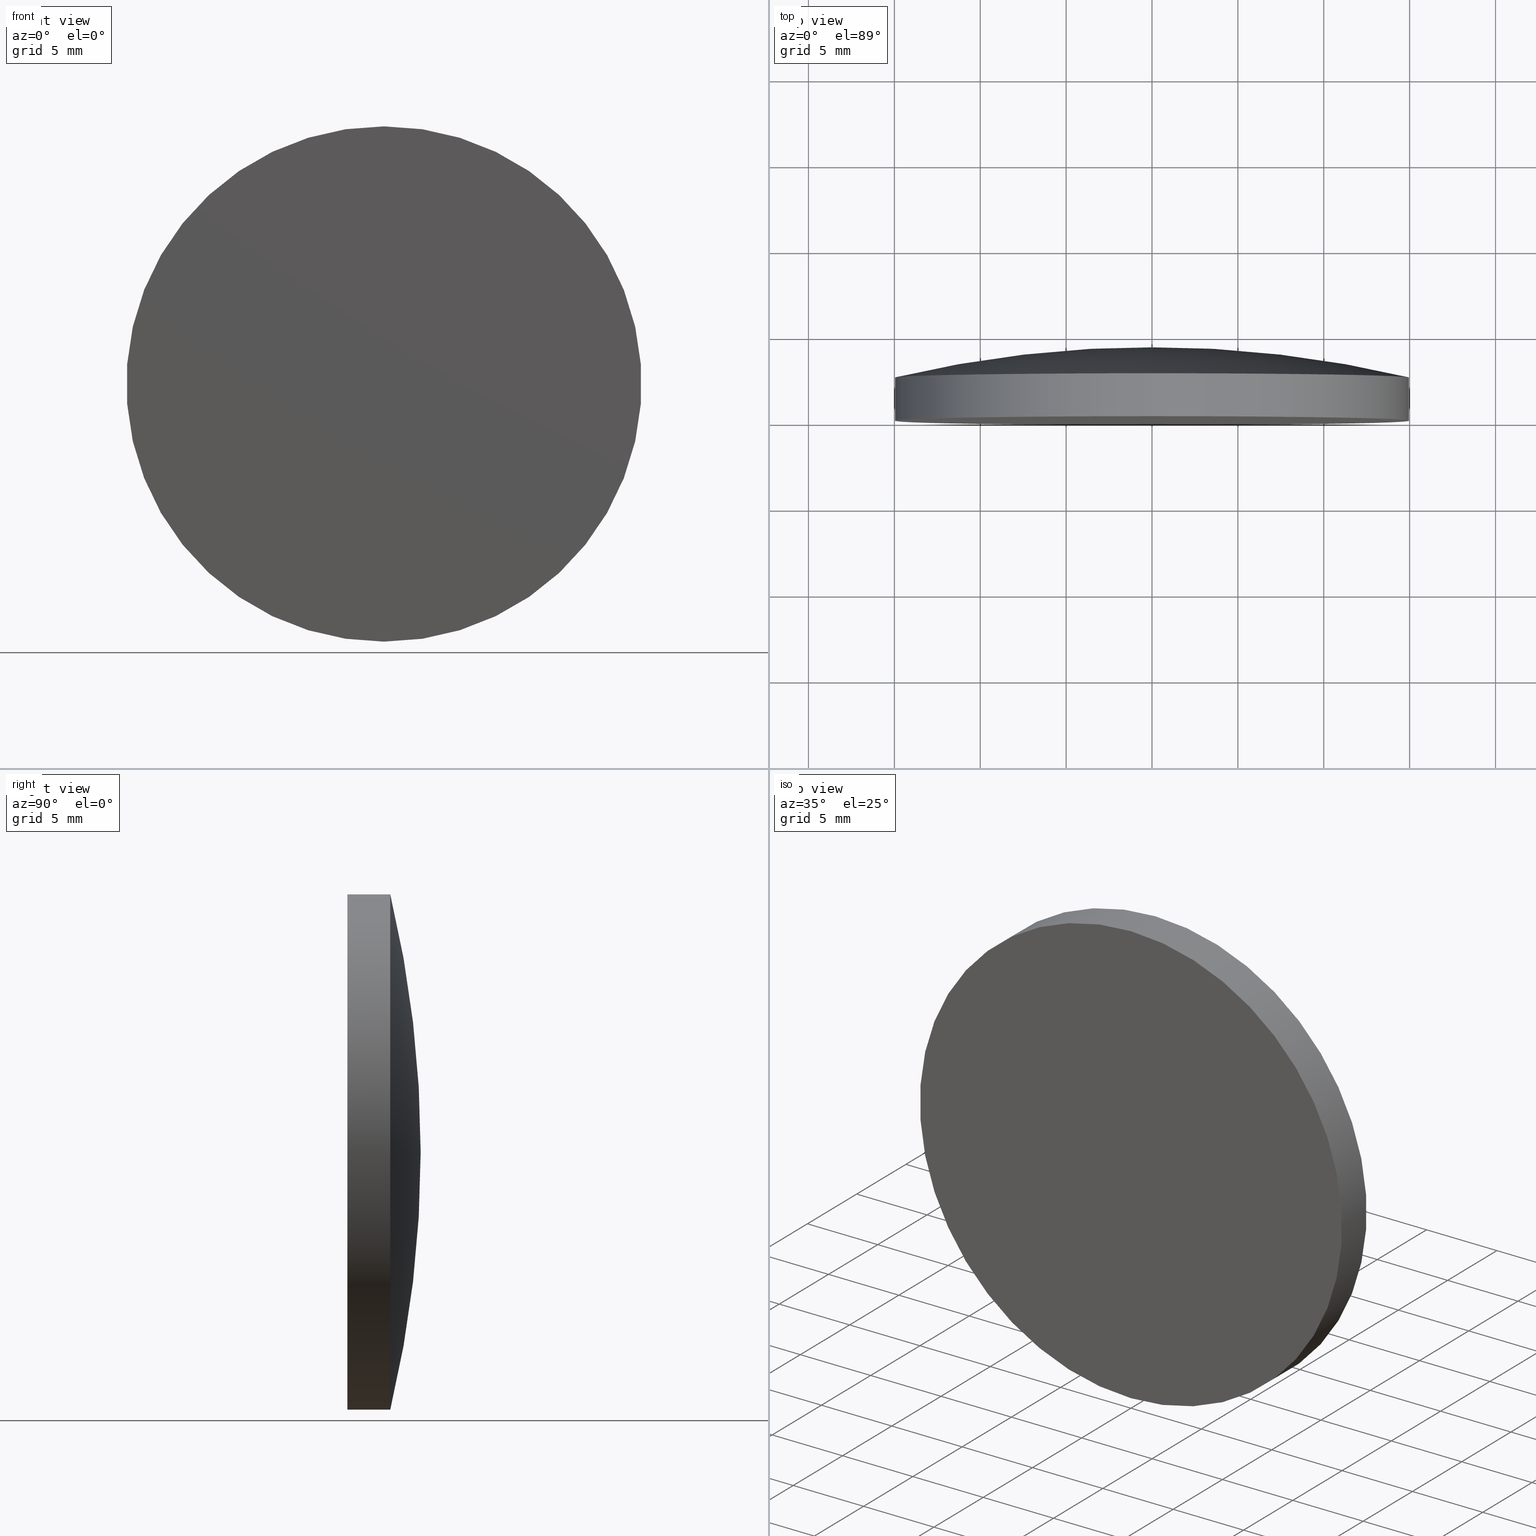
[diagram: canonical four-view strip — front | top / right | iso, engineering-drawing reading convention]
A machine part, canonical four-view strip (front | top / right | iso — engineering-drawing reading convention). The complete STEP part file that produces these views, byte-faithful:
ISO-10303-21;
HEADER;
FILE_DESCRIPTION (( 'STEP AP203' ),
    '1' );
FILE_NAME ('100599.STEP',
    '2024-05-10T02:01:58',
    ( '' ),
    ( '' ),
    'SwSTEP 2.0',
    'SolidWorks 2020',
    '' );
FILE_SCHEMA (( 'CONFIG_CONTROL_DESIGN' ));
ENDSEC;

DATA;
#1 = APPLICATION_CONTEXT ( 'configuration controlled 3d designs of mechanical parts and assemblies' ) ;
#2 = PERSON_AND_ORGANIZATION_ROLE ( 'creator' ) ;
#3 =( LENGTH_UNIT ( ) NAMED_UNIT ( * ) SI_UNIT ( .MILLI., .METRE. ) );
#4 = DATE_AND_TIME ( #19, #71 ) ;
#5 = PRODUCT_DEFINITION ( 'δ֪', '', #33, #49 ) ;
#6 =( GEOMETRIC_REPRESENTATION_CONTEXT ( 3 ) GLOBAL_UNCERTAINTY_ASSIGNED_CONTEXT ( ( #27 ) ) GLOBAL_UNIT_ASSIGNED_CONTEXT ( ( #3, #127, #86 ) ) REPRESENTATION_CONTEXT ( 'NONE', 'WORKASPACE' ) );
#7 = VERTEX_POINT ( 'NONE', #175 ) ;
#8 = CALENDAR_DATE ( 2024, 10, 5 ) ;
#9 = DIRECTION ( 'NONE',  ( 0.000000000000000000, 0.000000000000000000, 1.000000000000000000 ) ) ;
#10 = CARTESIAN_POINT ( 'NONE',  ( 1.836970198721029589E-15, -1.734723475976807094E-15, -15.00000000000000000 ) ) ;
#11 = EDGE_LOOP ( 'NONE', ( #182, #57, #24 ) ) ;
#12 = CARTESIAN_POINT ( 'NONE',  ( 0.000000000000000000, 4.269999999999999574, 0.000000000000000000 ) ) ;
#13 = ADVANCED_BREP_SHAPE_REPRESENTATION ( '100599', ( #186, #26 ), #6 ) ;
#14 = CIRCLE ( 'NONE', #200, 15.00000000000000000 ) ;
#15 = EDGE_CURVE ( 'NONE', #75, #39, #90, .T. ) ;
#16 = DATE_TIME_ROLE ( 'creation_date' ) ;
#17 = MECHANICAL_CONTEXT ( 'NONE', #89, 'mechanical' ) ;
#18 = CIRCLE ( 'NONE', #170, 15.00000000000000000 ) ;
#19 = CALENDAR_DATE ( 2024, 10, 5 ) ;
#20 = ORIENTED_EDGE ( 'NONE', *, *, #83, .F. ) ;
#21 = CARTESIAN_POINT ( 'NONE',  ( 0.000000000000000000, -60.27999879552782403, -0.01246985787228902659 ) ) ;
#22 = TOROIDAL_SURFACE ( 'NONE', #138, -0.01246985787228902659, 64.54999999999999716 ) ;
#23 = CARTESIAN_POINT ( 'NONE',  ( 0.000000000000000000, 2.499999999999998224, 0.000000000000000000 ) ) ;
#24 = ORIENTED_EDGE ( 'NONE', *, *, #112, .F. ) ;
#25 = FACE_OUTER_BOUND ( 'NONE', #147, .T. ) ;
#26 = AXIS2_PLACEMENT_3D ( 'NONE', #66, #174, #70 ) ;
#27 = UNCERTAINTY_MEASURE_WITH_UNIT (LENGTH_MEASURE( 1.000000000000000082E-05 ), #3, 'distance_accuracy_value', 'NONE');
#28 = CARTESIAN_POINT ( 'NONE',  ( 0.000000000000000000, -1.734723475976807094E-15, 15.00000000000000000 ) ) ;
#29 = APPROVAL ( #84, 'δָ��' ) ;
#30 = CC_DESIGN_APPROVAL ( #67, ( #5 ) ) ;
#31 = CIRCLE ( 'NONE', #53, 64.54999999999999716 ) ;
#32 = COORDINATED_UNIVERSAL_TIME_OFFSET ( 8, 0, .AHEAD. ) ;
#33 = PRODUCT_DEFINITION_FORMATION_WITH_SPECIFIED_SOURCE ( '�κ�', '', #128, .NOT_KNOWN. ) ;
#34 = DATE_AND_TIME ( #155, #144 ) ;
#35 = EDGE_CURVE ( 'NONE', #176, #39, #14, .T. ) ;
#36 = PERSON_AND_ORGANIZATION_ROLE ( 'classification_officer' ) ;
#37 = CC_DESIGN_PERSON_AND_ORGANIZATION_ASSIGNMENT ( #85, #2, ( #33 ) ) ;
#38 = EDGE_CURVE ( 'NONE', #39, #7, #105, .T. ) ;
#39 = VERTEX_POINT ( 'NONE', #193 ) ;
#40 = PERSON_AND_ORGANIZATION ( #46, #111 ) ;
#41 = DIRECTION ( 'NONE',  ( -0.000000000000000000, 1.000000000000000000, -0.000000000000000000 ) ) ;
#42 = APPROVAL_STATUS ( 'not_yet_approved' ) ;
#43 = DIRECTION ( 'NONE',  ( -0.000000000000000000, 1.000000000000000000, -0.000000000000000000 ) ) ;
#44 = AXIS2_PLACEMENT_3D ( 'NONE', #150, #80, #135 ) ;
#45 = APPROVAL_DATE_TIME ( #177, #100 ) ;
#46 = PERSON ( 'δָ��', 'δָ��', 'δָ��', ('δָ��'), ('δָ��'), ('δָ��') ) ;
#47 = DIRECTION ( 'NONE',  ( 1.000000000000000000, 0.000000000000000000, 1.224646799147353207E-16 ) ) ;
#48 = EDGE_CURVE ( 'NONE', #148, #75, #18, .T. ) ;
#49 = DESIGN_CONTEXT ( 'detailed design', #1, 'design' ) ;
#50 = DIRECTION ( 'NONE',  ( -0.000000000000000000, 1.000000000000000000, -0.000000000000000000 ) ) ;
#51 = PERSON_AND_ORGANIZATION ( #46, #111 ) ;
#52 = CC_DESIGN_APPROVAL ( #100, ( #166 ) ) ;
#53 = AXIS2_PLACEMENT_3D ( 'NONE', #21, #145, #9 ) ;
#54 = PERSON_AND_ORGANIZATION_ROLE ( 'design_supplier' ) ;
#55 = PERSON_AND_ORGANIZATION ( #46, #111 ) ;
#56 = DIRECTION ( 'NONE',  ( -0.000000000000000000, 1.000000000000000000, -0.000000000000000000 ) ) ;
#57 = ORIENTED_EDGE ( 'NONE', *, *, #38, .T. ) ;
#58 = DIRECTION ( 'NONE',  ( -0.000000000000000000, 1.000000000000000000, -0.000000000000000000 ) ) ;
#59 = CC_DESIGN_PERSON_AND_ORGANIZATION_ASSIGNMENT ( #173, #36, ( #166 ) ) ;
#60 = DATE_AND_TIME ( #8, #88 ) ;
#61 = CARTESIAN_POINT ( 'NONE',  ( -1.527117152912117945E-18, -60.27999879552782403, 0.01246985787228902659 ) ) ;
#62 = DIRECTION ( 'NONE',  ( 0.000000000000000000, 0.000000000000000000, 1.000000000000000000 ) ) ;
#63 = LINE ( 'NONE', #123, #180 ) ;
#64 = PLANE ( 'NONE',  #187 ) ;
#65 = PRODUCT_RELATED_PRODUCT_CATEGORY ( 'detail', '', ( #128 ) ) ;
#66 = CARTESIAN_POINT ( 'NONE',  ( 0.000000000000000000, 0.000000000000000000, 0.000000000000000000 ) ) ;
#67 = APPROVAL ( #190, 'δָ��' ) ;
#68 = APPLICATION_PROTOCOL_DEFINITION ( 'international standard', 'config_control_design', 1994, #1 ) ;
#69 = VECTOR ( 'NONE', #195, 1000.000000000000000 ) ;
#70 = DIRECTION ( 'NONE',  ( 1.000000000000000000, 0.000000000000000000, 0.000000000000000000 ) ) ;
#71 = LOCAL_TIME ( 10, 1, 58.00000000000000000, #159 ) ;
#72 = EDGE_LOOP ( 'NONE', ( #198, #20 ) ) ;
#73 = FACE_OUTER_BOUND ( 'NONE', #11, .T. ) ;
#74 = CALENDAR_DATE ( 2024, 10, 5 ) ;
#75 = VERTEX_POINT ( 'NONE', #10 ) ;
#76 = CARTESIAN_POINT ( 'NONE',  ( 0.000000000000000000, -1.734723475976807094E-15, 0.000000000000000000 ) ) ;
#77 = TOROIDAL_SURFACE ( 'NONE', #113, -0.01246985787228902659, 64.54999999999999716 ) ;
#78 = CC_DESIGN_PERSON_AND_ORGANIZATION_ASSIGNMENT ( #141, #139, ( #128 ) ) ;
#79 = DIRECTION ( 'NONE',  ( 0.000000000000000000, 0.000000000000000000, 1.000000000000000000 ) ) ;
#80 = DIRECTION ( 'NONE',  ( -0.000000000000000000, 1.000000000000000000, -0.000000000000000000 ) ) ;
#81 = CC_DESIGN_SECURITY_CLASSIFICATION ( #166, ( #33 ) ) ;
#82 = CIRCLE ( 'NONE', #44, 15.00000000000000000 ) ;
#83 = EDGE_CURVE ( 'NONE', #75, #148, #140, .T. ) ;
#84 = APPROVAL_STATUS ( 'not_yet_approved' ) ;
#85 = PERSON_AND_ORGANIZATION ( #46, #111 ) ;
#86 =( NAMED_UNIT ( * ) SI_UNIT ( $, .STERADIAN. ) SOLID_ANGLE_UNIT ( ) );
#87 = FACE_OUTER_BOUND ( 'NONE', #131, .T. ) ;
#88 = LOCAL_TIME ( 10, 1, 58.00000000000000000, #99 ) ;
#89 = APPLICATION_CONTEXT ( 'configuration controlled 3d designs of mechanical parts and assemblies' ) ;
#90 = LINE ( 'NONE', #122, #69 ) ;
#91 = DIRECTION ( 'NONE',  ( 0.000000000000000000, 0.000000000000000000, 1.000000000000000000 ) ) ;
#92 = DIRECTION ( 'NONE',  ( 0.000000000000000000, 0.000000000000000000, 1.000000000000000000 ) ) ;
#93 = ORIENTED_EDGE ( 'NONE', *, *, #184, .T. ) ;
#94 = CARTESIAN_POINT ( 'NONE',  ( 0.000000000000000000, -9.184850993605147944E-16, 0.000000000000000000 ) ) ;
#95 = ADVANCED_FACE ( 'NONE', ( #25 ), #22, .T. ) ;
#96 = CALENDAR_DATE ( 2024, 10, 5 ) ;
#97 = APPROVAL_PERSON_ORGANIZATION ( #189, #29, #156 ) ;
#98 = APPROVAL_DATE_TIME ( #34, #29 ) ;
#99 = COORDINATED_UNIVERSAL_TIME_OFFSET ( 8, 0, .AHEAD. ) ;
#100 = APPROVAL ( #42, 'δָ��' ) ;
#101 = DIRECTION ( 'NONE',  ( 0.000000000000000000, 0.000000000000000000, 1.000000000000000000 ) ) ;
#102 = CARTESIAN_POINT ( 'NONE',  ( 0.000000000000000000, -1.734723475976807094E-15, 0.000000000000000000 ) ) ;
#103 = ADVANCED_FACE ( 'NONE', ( #87 ), #161, .T. ) ;
#104 = ORIENTED_EDGE ( 'NONE', *, *, #35, .F. ) ;
#105 = CIRCLE ( 'NONE', #196, 64.54999999999999716 ) ;
#106 = CARTESIAN_POINT ( 'NONE',  ( 0.000000000000000000, -60.27999879552782403, 0.000000000000000000 ) ) ;
#107 = COORDINATED_UNIVERSAL_TIME_OFFSET ( 8, 0, .AHEAD. ) ;
#108 = EDGE_LOOP ( 'NONE', ( #110, #121, #93, #160 ) ) ;
#109 = SHAPE_DEFINITION_REPRESENTATION ( #181, #13 ) ;
#110 = ORIENTED_EDGE ( 'NONE', *, *, #15, .F. ) ;
#111 = ORGANIZATION ( 'δָ��', 'δָ��', '' ) ;
#112 = EDGE_CURVE ( 'NONE', #176, #7, #31, .T. ) ;
#113 = AXIS2_PLACEMENT_3D ( 'NONE', #106, #162, #91 ) ;
#114 = FACE_OUTER_BOUND ( 'NONE', #108, .T. ) ;
#115 = SECURITY_CLASSIFICATION_LEVEL ( 'unclassified' ) ;
#116 = CC_DESIGN_PERSON_AND_ORGANIZATION_ASSIGNMENT ( #126, #54, ( #33 ) ) ;
#117 = APPROVAL_ROLE ( '' ) ;
#118 = PERSON_AND_ORGANIZATION_ROLE ( 'creator' ) ;
#119 = ORIENTED_EDGE ( 'NONE', *, *, #15, .T. ) ;
#120 = AXIS2_PLACEMENT_3D ( 'NONE', #125, #188, #101 ) ;
#121 = ORIENTED_EDGE ( 'NONE', *, *, #83, .T. ) ;
#122 = CARTESIAN_POINT ( 'NONE',  ( 1.836970198721029589E-15, 4.269999999999999574, -15.00000000000000000 ) ) ;
#123 = CARTESIAN_POINT ( 'NONE',  ( 0.000000000000000000, 4.269999999999999574, 15.00000000000000000 ) ) ;
#124 = ADVANCED_FACE ( 'NONE', ( #73 ), #77, .T. ) ;
#125 = CARTESIAN_POINT ( 'NONE',  ( 0.000000000000000000, 4.269999999999999574, 0.000000000000000000 ) ) ;
#126 = PERSON_AND_ORGANIZATION ( #46, #111 ) ;
#127 =( NAMED_UNIT ( * ) PLANE_ANGLE_UNIT ( ) SI_UNIT ( $, .RADIAN. ) );
#128 = PRODUCT ( '100599', '100599', '', ( #17 ) ) ;
#129 = APPLICATION_PROTOCOL_DEFINITION ( 'international standard', 'config_control_design', 1994, #89 ) ;
#130 = DATE_TIME_ROLE ( 'classification_date' ) ;
#131 = EDGE_LOOP ( 'NONE', ( #197, #119, #104, #143 ) ) ;
#132 = ORIENTED_EDGE ( 'NONE', *, *, #38, .F. ) ;
#133 = DIRECTION ( 'NONE',  ( 0.000000000000000000, 0.000000000000000000, 1.000000000000000000 ) ) ;
#134 = DIRECTION ( 'NONE',  ( 1.224646799147352961E-16, 0.000000000000000000, -1.000000000000000000 ) ) ;
#135 = DIRECTION ( 'NONE',  ( 0.000000000000000000, 0.000000000000000000, 1.000000000000000000 ) ) ;
#136 = CC_DESIGN_PERSON_AND_ORGANIZATION_ASSIGNMENT ( #55, #118, ( #5 ) ) ;
#137 = LOCAL_TIME ( 10, 1, 58.00000000000000000, #107 ) ;
#138 = AXIS2_PLACEMENT_3D ( 'NONE', #163, #43, #62 ) ;
#139 = PERSON_AND_ORGANIZATION_ROLE ( 'design_owner' ) ;
#140 = CIRCLE ( 'NONE', #157, 15.00000000000000000 ) ;
#141 = PERSON_AND_ORGANIZATION ( #46, #111 ) ;
#142 = ADVANCED_FACE ( 'NONE', ( #178 ), #64, .T. ) ;
#143 = ORIENTED_EDGE ( 'NONE', *, *, #184, .F. ) ;
#144 = LOCAL_TIME ( 10, 1, 58.00000000000000000, #171 ) ;
#145 = DIRECTION ( 'NONE',  ( -1.000000000000000000, 0.000000000000000000, 0.000000000000000000 ) ) ;
#146 = APPROVAL_ROLE ( '' ) ;
#147 = EDGE_LOOP ( 'NONE', ( #132, #183, #149 ) ) ;
#148 = VERTEX_POINT ( 'NONE', #28 ) ;
#149 = ORIENTED_EDGE ( 'NONE', *, *, #112, .T. ) ;
#150 = CARTESIAN_POINT ( 'NONE',  ( 0.000000000000000000, 2.499999999999998224, 0.000000000000000000 ) ) ;
#151 = CC_DESIGN_APPROVAL ( #29, ( #33 ) ) ;
#152 = CLOSED_SHELL ( 'NONE', ( #103, #124, #95, #142, #201 ) ) ;
#153 = DIRECTION ( 'NONE',  ( 0.000000000000000000, -1.000000000000000000, 0.000000000000000000 ) ) ;
#154 = DATE_AND_TIME ( #96, #185 ) ;
#155 = CALENDAR_DATE ( 2024, 10, 5 ) ;
#156 = APPROVAL_ROLE ( '' ) ;
#157 = AXIS2_PLACEMENT_3D ( 'NONE', #102, #58, #79 ) ;
#158 = EDGE_CURVE ( 'NONE', #39, #176, #82, .T. ) ;
#159 = COORDINATED_UNIVERSAL_TIME_OFFSET ( 8, 0, .AHEAD. ) ;
#160 = ORIENTED_EDGE ( 'NONE', *, *, #158, .F. ) ;
#161 = CYLINDRICAL_SURFACE ( 'NONE', #167, 15.00000000000000000 ) ;
#162 = DIRECTION ( 'NONE',  ( -0.000000000000000000, 1.000000000000000000, -0.000000000000000000 ) ) ;
#163 = CARTESIAN_POINT ( 'NONE',  ( 0.000000000000000000, -60.27999879552782403, 0.000000000000000000 ) ) ;
#164 = DIRECTION ( 'NONE',  ( 0.000000000000000000, 0.000000000000000000, 1.000000000000000000 ) ) ;
#165 = DIRECTION ( 'NONE',  ( 0.000000000000000000, -0.000000000000000000, -1.000000000000000000 ) ) ;
#166 = SECURITY_CLASSIFICATION ( '', '', #115 ) ;
#167 = AXIS2_PLACEMENT_3D ( 'NONE', #12, #41, #92 ) ;
#168 = CC_DESIGN_DATE_AND_TIME_ASSIGNMENT ( #154, #16, ( #5 ) ) ;
#169 = APPROVAL_PERSON_ORGANIZATION ( #40, #100, #146 ) ;
#170 = AXIS2_PLACEMENT_3D ( 'NONE', #76, #56, #164 ) ;
#171 = COORDINATED_UNIVERSAL_TIME_OFFSET ( 8, 0, .AHEAD. ) ;
#172 = CYLINDRICAL_SURFACE ( 'NONE', #120, 15.00000000000000000 ) ;
#173 = PERSON_AND_ORGANIZATION ( #46, #111 ) ;
#174 = DIRECTION ( 'NONE',  ( 0.000000000000000000, 0.000000000000000000, 1.000000000000000000 ) ) ;
#175 = CARTESIAN_POINT ( 'NONE',  ( 0.000000000000000000, 4.269999999999999574, 0.000000000000000000 ) ) ;
#176 = VERTEX_POINT ( 'NONE', #199 ) ;
#177 = DATE_AND_TIME ( #74, #137 ) ;
#178 = FACE_OUTER_BOUND ( 'NONE', #72, .T. ) ;
#179 = CC_DESIGN_DATE_AND_TIME_ASSIGNMENT ( #60, #130, ( #166 ) ) ;
#180 = VECTOR ( 'NONE', #50, 1000.000000000000000 ) ;
#181 = PRODUCT_DEFINITION_SHAPE ( 'NONE', 'NONE',  #5 ) ;
#182 = ORIENTED_EDGE ( 'NONE', *, *, #35, .T. ) ;
#183 = ORIENTED_EDGE ( 'NONE', *, *, #158, .T. ) ;
#184 = EDGE_CURVE ( 'NONE', #148, #176, #63, .T. ) ;
#185 = LOCAL_TIME ( 10, 1, 58.00000000000000000, #32 ) ;
#186 = MANIFOLD_SOLID_BREP ( '��ת1', #152 ) ;
#187 = AXIS2_PLACEMENT_3D ( 'NONE', #94, #153, #165 ) ;
#188 = DIRECTION ( 'NONE',  ( -0.000000000000000000, 1.000000000000000000, -0.000000000000000000 ) ) ;
#189 = PERSON_AND_ORGANIZATION ( #46, #111 ) ;
#190 = APPROVAL_STATUS ( 'not_yet_approved' ) ;
#191 = APPROVAL_DATE_TIME ( #4, #67 ) ;
#192 = APPROVAL_PERSON_ORGANIZATION ( #51, #67, #117 ) ;
#193 = CARTESIAN_POINT ( 'NONE',  ( 1.836970198721029589E-15, 2.500000000000000444, -15.00000000000000000 ) ) ;
#194 = DIRECTION ( 'NONE',  ( -0.000000000000000000, 1.000000000000000000, -0.000000000000000000 ) ) ;
#195 = DIRECTION ( 'NONE',  ( -0.000000000000000000, 1.000000000000000000, -0.000000000000000000 ) ) ;
#196 = AXIS2_PLACEMENT_3D ( 'NONE', #61, #47, #134 ) ;
#197 = ORIENTED_EDGE ( 'NONE', *, *, #48, .T. ) ;
#198 = ORIENTED_EDGE ( 'NONE', *, *, #48, .F. ) ;
#199 = CARTESIAN_POINT ( 'NONE',  ( 0.000000000000000000, 2.500000000000000444, 15.00000000000000000 ) ) ;
#200 = AXIS2_PLACEMENT_3D ( 'NONE', #23, #194, #133 ) ;
#201 = ADVANCED_FACE ( 'NONE', ( #114 ), #172, .T. ) ;
ENDSEC;
END-ISO-10303-21;
